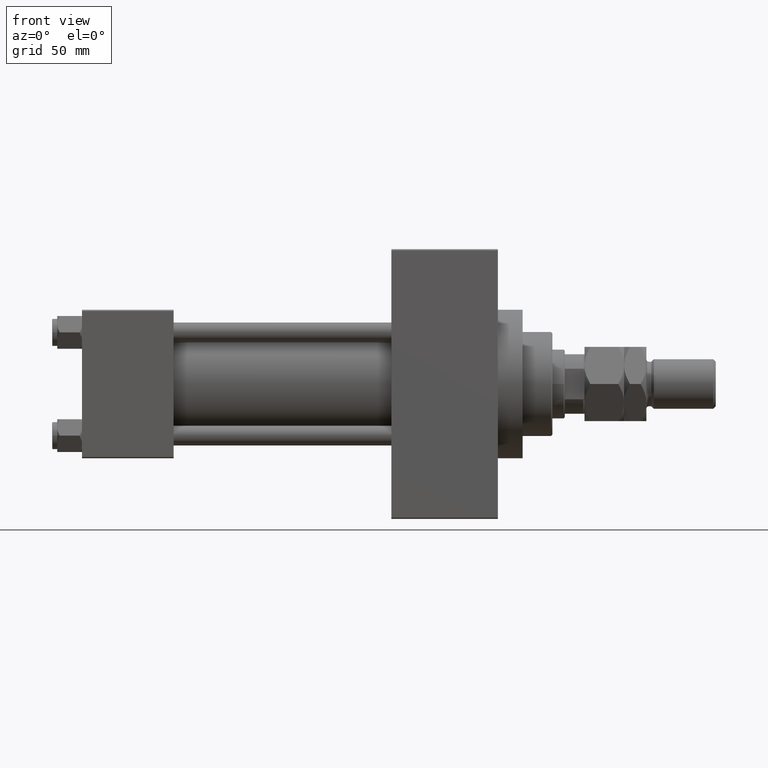
[diagram: clean part render]
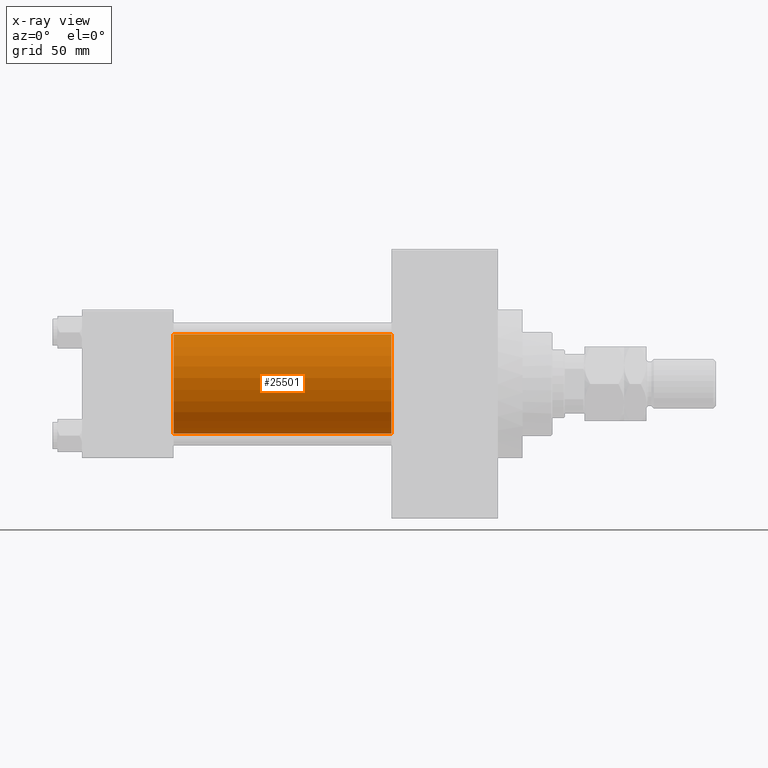
[diagram: x-ray — body ghosted, one internal face saturated and labeled with its STEP entity id]
A machine part, front view, then the same camera in x-ray: the body is ghosted and one INTERNAL B-rep face — a face not visible from any outside direction — is saturated and labeled: STEP entity #25501.
In plain terms, the highlighted cylindrical surface (partial cylindrical patch) has radius 20 mm, axis along (-1, -0, -0).
Its self-contained STEP definition (entity closure, byte-faithful):
#1672 = FACE_OUTER_BOUND ( 'NONE', #20669, .T. ) ;
#3990 = VERTEX_POINT ( 'NONE', #8653 ) ;
#4686 = DIRECTION ( 'NONE',  ( 0.000000000000000000, 0.000000000000000000, 1.000000000000000000 ) ) ;
#4708 = AXIS2_PLACEMENT_3D ( 'NONE', #37575, #30366, #7766 ) ;
#5726 = CARTESIAN_POINT ( 'NONE',  ( 125.0000000000000000, -1.527916156705042519E-16, -20.00000000000000000 ) ) ;
#5728 = DIRECTION ( 'NONE',  ( 1.000000000000000000, 0.000000000000000000, 0.000000000000000000 ) ) ;
#7766 = DIRECTION ( 'NONE',  ( 0.000000000000000000, 0.000000000000000000, -1.000000000000000000 ) ) ;
#7922 = CARTESIAN_POINT ( 'NONE',  ( 125.0000000000000000, -2.602085213965210642E-15, 20.00000000000000000 ) ) ;
#8653 = CARTESIAN_POINT ( 'NONE',  ( 37.00000000000000000, -2.602085213965210642E-15, 20.00000000000000000 ) ) ;
#9160 = CARTESIAN_POINT ( 'NONE',  ( 125.0000000000000000, -2.602085213965210642E-15, 0.000000000000000000 ) ) ;
#9552 = VERTEX_POINT ( 'NONE', #40041 ) ;
#13435 = DIRECTION ( 'NONE',  ( 0.000000000000000000, 0.000000000000000000, -1.000000000000000000 ) ) ;
#17128 = ORIENTED_EDGE ( 'NONE', *, *, #47640, .T. ) ;
#17946 = EDGE_CURVE ( 'NONE', #31275, #3990, #29788, .T. ) ;
#20102 = CYLINDRICAL_SURFACE ( 'NONE', #42214, 20.00000000000000000 ) ;
#20669 = EDGE_LOOP ( 'NONE', ( #24226, #17128, #30016, #27070 ) ) ;
#20888 = DIRECTION ( 'NONE',  ( -1.000000000000000000, -0.000000000000000000, -0.000000000000000000 ) ) ;
#24226 = ORIENTED_EDGE ( 'NONE', *, *, #28834, .T. ) ;
#25217 = VERTEX_POINT ( 'NONE', #34578 ) ;
#25501 = ADVANCED_FACE ( 'NONE', ( #1672 ), #20102, .F. ) ;
#26705 = CARTESIAN_POINT ( 'NONE',  ( 125.0000000000000000, -2.602085213965210642E-15, 20.00000000000000000 ) ) ;
#27070 = ORIENTED_EDGE ( 'NONE', *, *, #17946, .F. ) ;
#28834 = EDGE_CURVE ( 'NONE', #31275, #9552, #46190, .T. ) ;
#29788 = LINE ( 'NONE', #7922, #44331 ) ;
#30016 = ORIENTED_EDGE ( 'NONE', *, *, #48673, .F. ) ;
#30366 = DIRECTION ( 'NONE',  ( 1.000000000000000000, 0.000000000000000000, 0.000000000000000000 ) ) ;
#31105 = AXIS2_PLACEMENT_3D ( 'NONE', #44238, #5728, #13435 ) ;
#31275 = VERTEX_POINT ( 'NONE', #26705 ) ;
#34010 = VECTOR ( 'NONE', #20888, 1000.000000000000000 ) ;
#34578 = CARTESIAN_POINT ( 'NONE',  ( 37.00000000000000000, -1.527916156705042519E-16, -20.00000000000000000 ) ) ;
#37575 = CARTESIAN_POINT ( 'NONE',  ( 37.00000000000000000, -2.602085213965210642E-15, 0.000000000000000000 ) ) ;
#39215 = DIRECTION ( 'NONE',  ( -1.000000000000000000, -0.000000000000000000, -0.000000000000000000 ) ) ;
#39620 = CIRCLE ( 'NONE', #4708, 20.00000000000000000 ) ;
#39778 = LINE ( 'NONE', #5726, #34010 ) ;
#40041 = CARTESIAN_POINT ( 'NONE',  ( 125.0000000000000000, -1.527916156705042519E-16, -20.00000000000000000 ) ) ;
#41965 = DIRECTION ( 'NONE',  ( -1.000000000000000000, -0.000000000000000000, -0.000000000000000000 ) ) ;
#42214 = AXIS2_PLACEMENT_3D ( 'NONE', #9160, #39215, #4686 ) ;
#44238 = CARTESIAN_POINT ( 'NONE',  ( 125.0000000000000000, -2.602085213965210642E-15, 0.000000000000000000 ) ) ;
#44331 = VECTOR ( 'NONE', #41965, 1000.000000000000000 ) ;
#46190 = CIRCLE ( 'NONE', #31105, 20.00000000000000000 ) ;
#47640 = EDGE_CURVE ( 'NONE', #9552, #25217, #39778, .T. ) ;
#48673 = EDGE_CURVE ( 'NONE', #3990, #25217, #39620, .T. ) ;